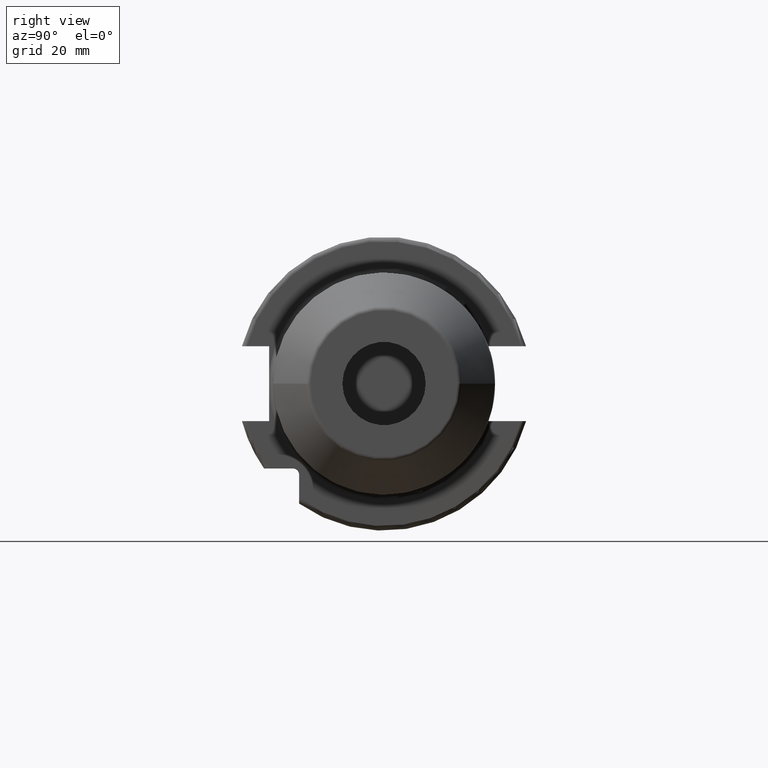
[diagram: clean part render]
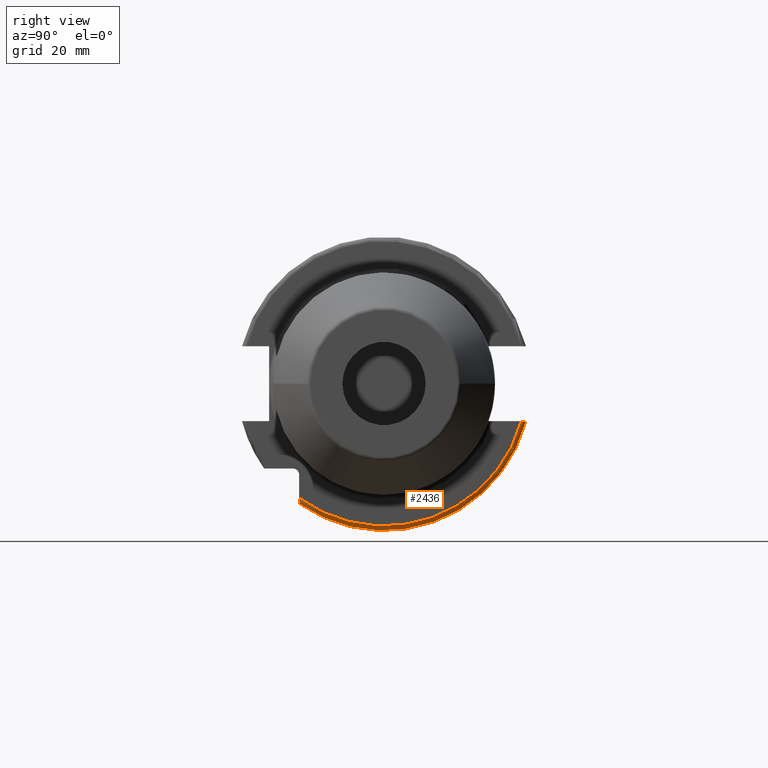
[diagram: same view with one face highlighted and labeled with its STEP entity id]
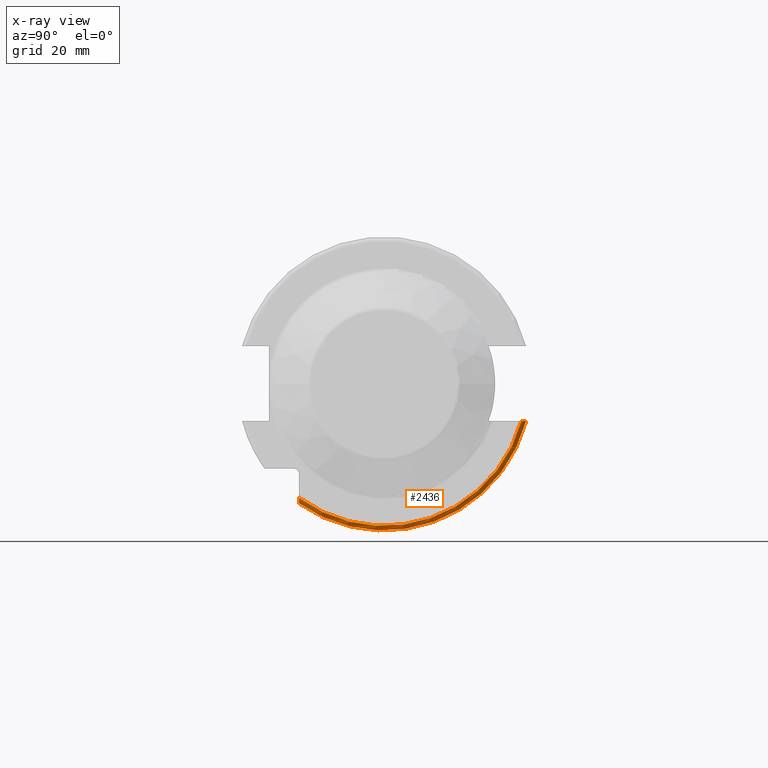
[diagram: x-ray of the same camera — body ghosted, the highlighted face saturated]
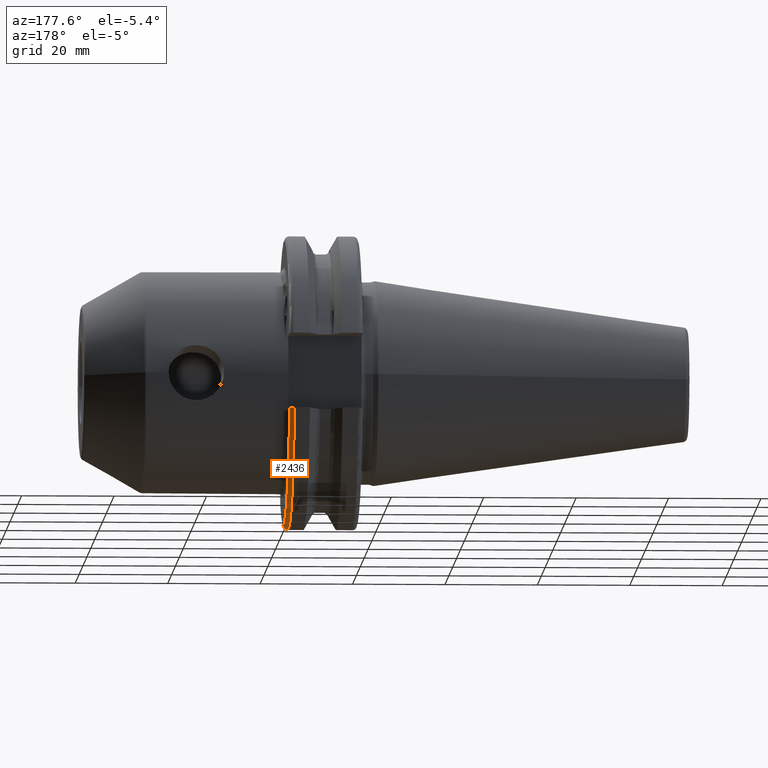
[diagram: same view with one face highlighted and labeled with its STEP entity id]
A machine part, right view. The second image highlights one B-rep face of the part: STEP entity #2436.
The next image is the same camera in x-ray: the body ghosted, the highlighted face saturated — about 0% of this face is hidden behind the body in this view.
A second angle (auxiliary view) of the same face is appended — the face is thin or edge-on in the first view.
In plain terms, the highlighted toroidal blend (fillet) surface has major radius 30.7625 mm and minor (blend) radius 1 mm.
Its self-contained STEP definition (entity closure, byte-faithful):
#624=CARTESIAN_POINT('',(1.805E1,3.071231684927E1,-8.1E0));
#625=CARTESIAN_POINT('',(1.812702529647E1,3.071231684927E1,-8.1E0));
#626=CARTESIAN_POINT('',(1.827656518037E1,3.069444719907E1,-8.1E0));
#627=CARTESIAN_POINT('',(1.849273698584E1,3.061544862934E1,-8.1E0));
#628=CARTESIAN_POINT('',(1.868460186607E1,3.048863686818E1,-8.1E0));
#629=CARTESIAN_POINT('',(1.884263679922E1,3.032251203229E1,-8.1E0));
#630=CARTESIAN_POINT('',(1.896052984725E1,3.012566774399E1,-8.1E0));
#631=CARTESIAN_POINT('',(1.903334281973E1,2.990707436768E1,-8.1E0));
#632=CARTESIAN_POINT('',(1.905E1,2.975515277820E1,-8.1E0));
#633=CARTESIAN_POINT('',(1.905E1,2.967695075728E1,-8.1E0));
#635=CARTESIAN_POINT('',(1.905E1,-1.835E1,-2.469025933946E1));
#636=CARTESIAN_POINT('',(1.905E1,-1.835E1,-2.477827489148E1));
#637=CARTESIAN_POINT('',(1.903550352933E1,-1.835E1,-2.495194722121E1));
#638=CARTESIAN_POINT('',(1.896629632127E1,-1.835E1,-2.521302960336E1));
#639=CARTESIAN_POINT('',(1.884964259244E1,-1.835E1,-2.545175760021E1));
#640=CARTESIAN_POINT('',(1.869337393206E1,-1.835E1,-2.565125079223E1));
#641=CARTESIAN_POINT('',(1.850440420446E1,-1.835E1,-2.580344847600E1));
#642=CARTESIAN_POINT('',(1.828893233655E1,-1.835E1,-2.590127687802E1));
#643=CARTESIAN_POINT('',(1.813210111876E1,-1.835E1,-2.592554543785E1));
#644=CARTESIAN_POINT('',(1.805E1,-1.835E1,-2.592554543785E1));
#646=CARTESIAN_POINT('',(1.905E1,0.E0,0.E0));
#647=DIRECTION('',(-1.E0,0.E0,0.E0));
#648=DIRECTION('',(0.E0,9.647119303464E-1,-2.633075985372E-1));
#649=AXIS2_PLACEMENT_3D('',#646,#647,#648);
#704=CARTESIAN_POINT('',(1.805E1,0.E0,0.E0));
#705=DIRECTION('',(-1.E0,0.E0,0.E0));
#706=DIRECTION('',(0.E0,9.669363825036E-1,-2.550177095632E-1));
#707=AXIS2_PLACEMENT_3D('',#704,#705,#706);
#1553=CARTESIAN_POINT('',(1.805E1,3.071231684927E1,-8.1E0));
#1554=VERTEX_POINT('',#1553);
#1561=VERTEX_POINT('',#633);
#1570=CARTESIAN_POINT('',(1.905E1,-1.835E1,-2.469025933946E1));
#1571=VERTEX_POINT('',#1570);
#1572=CARTESIAN_POINT('',(1.805E1,-1.835E1,-2.592554543785E1));
#1573=VERTEX_POINT('',#1572);
#2424=CARTESIAN_POINT('',(1.805E1,0.E0,0.E0));
#2425=DIRECTION('',(1.E0,0.E0,0.E0));
#2426=DIRECTION('',(0.E0,-1.E0,0.E0));
#2427=AXIS2_PLACEMENT_3D('',#2424,#2425,#2426);
#2428=TOROIDAL_SURFACE('',#2427,3.07625E1,1.E0);
#2429=ORIENTED_EDGE('',*,*,#1980,.F.);
#2431=ORIENTED_EDGE('',*,*,#2430,.T.);
#2432=ORIENTED_EDGE('',*,*,#2399,.F.);
#2433=ORIENTED_EDGE('',*,*,#1993,.F.);
#2434=EDGE_LOOP('',(#2429,#2431,#2432,#2433));
#2435=FACE_OUTER_BOUND('',#2434,.F.);
#2436=ADVANCED_FACE('',(#2435),#2428,.T.);
#634=B_SPLINE_CURVE_WITH_KNOTS('',3,(#624,#625,#626,#627,#628,#629,#630,#631,
#632,#633),.UNSPECIFIED.,.F.,.F.,(4,1,1,1,1,1,1,4),(0.E0,1.428571428571E-1,
2.857142857143E-1,4.285714285714E-1,5.714285714286E-1,7.142857142857E-1,
8.571428571429E-1,1.E0),.UNSPECIFIED.);
#645=B_SPLINE_CURVE_WITH_KNOTS('',3,(#635,#636,#637,#638,#639,#640,#641,#642,
#643,#644),.UNSPECIFIED.,.F.,.F.,(4,1,1,1,1,1,1,4),(0.E0,1.428571428571E-1,
2.857142857143E-1,4.285714285714E-1,5.714285714286E-1,7.142857142857E-1,
8.571428571429E-1,1.E0),.UNSPECIFIED.);
#650=CIRCLE('',#649,3.07625E1);
#708=CIRCLE('',#707,3.17625E1);
#1980=EDGE_CURVE('',#1554,#1561,#634,.T.);
#1993=EDGE_CURVE('',#1561,#1571,#650,.T.);
#2399=EDGE_CURVE('',#1571,#1573,#645,.T.);
#2430=EDGE_CURVE('',#1554,#1573,#708,.T.);